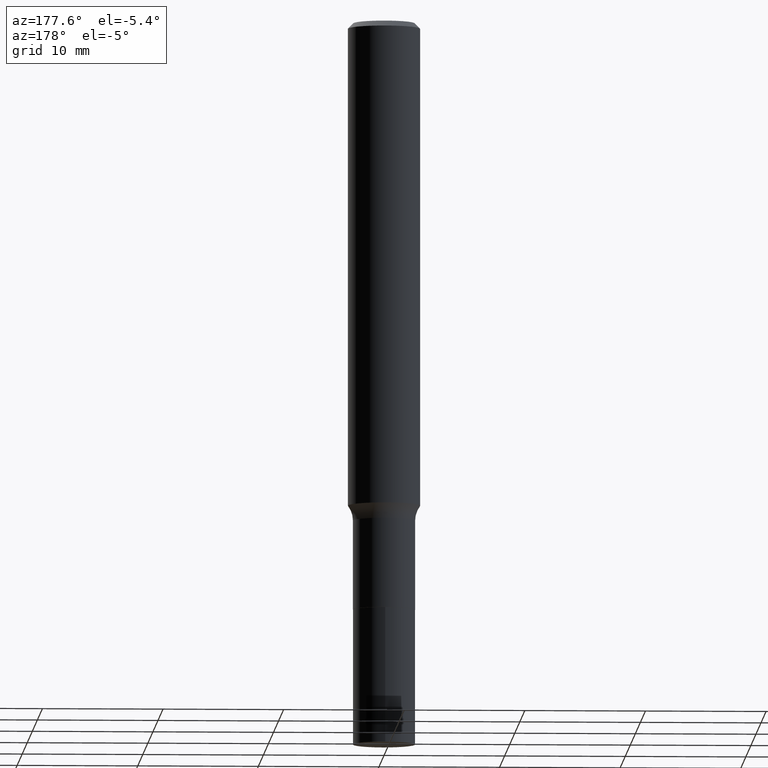
[diagram: clean part render]
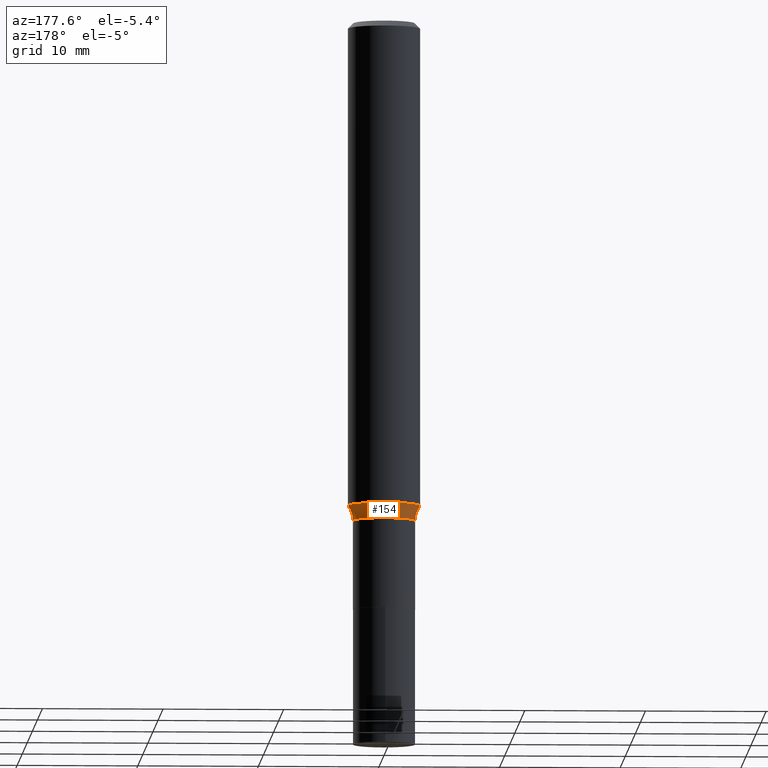
[diagram: same view with one face highlighted and labeled with its STEP entity id]
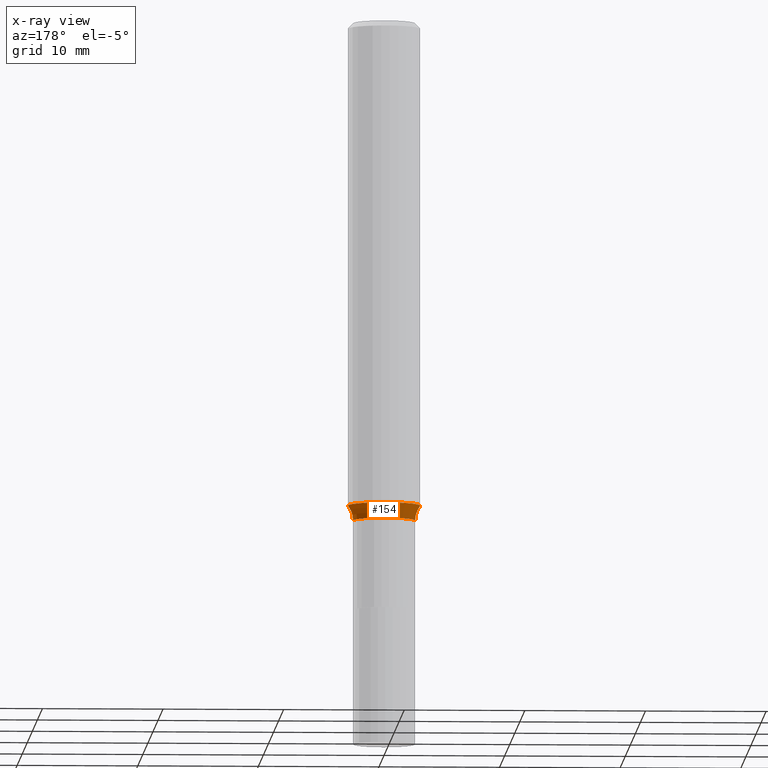
[diagram: x-ray of the same camera — body ghosted, the highlighted face saturated]
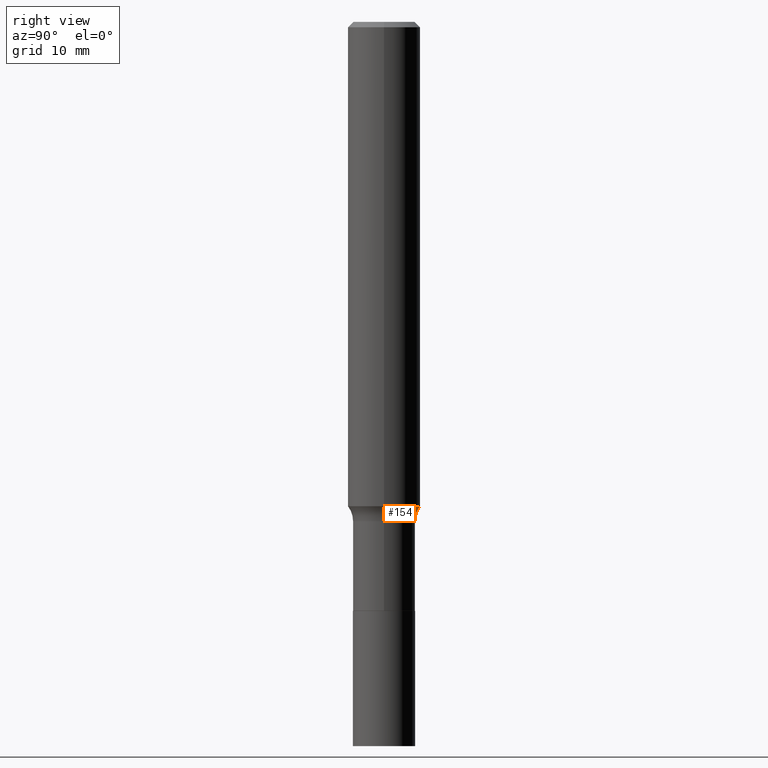
[diagram: same view with one face highlighted and labeled with its STEP entity id]
A machine part, auxiliary view. The second image highlights one B-rep face of the part: STEP entity #154.
The next image is the same camera in x-ray: the body ghosted, the highlighted face saturated — about 0% of this face is hidden behind the body in this view.
A second angle (right view) of the same face is appended — the face is thin or edge-on in the first view.
In plain terms, the highlighted toroidal blend (fillet) surface has major radius 4.6114 mm and minor (blend) radius 2.032 mm.
Its self-contained STEP definition (entity closure, byte-faithful):
#1 = ORIENTED_EDGE ( 'NONE', *, *, #147, .T. ) ;
#2 = CIRCLE ( 'NONE', #223, 0.08000000000000002942 ) ;
#24 = DIRECTION ( 'NONE',  ( -2.445468806185136597E-29, 3.491481338843145583E-15, 1.000000000000000000 ) ) ;
#25 = AXIS2_PLACEMENT_3D ( 'NONE', #188, #82, #83 ) ;
#34 = CIRCLE ( 'NONE', #58, 0.08000000000000002942 ) ;
#38 = EDGE_LOOP ( 'NONE', ( #253, #355, #1, #288 ) ) ;
#58 = AXIS2_PLACEMENT_3D ( 'NONE', #124, #267, #367 ) ;
#60 = CARTESIAN_POINT ( 'NONE',  ( -0.1015499999999999736, -5.474775783880549735E-15, -1.628700000000000259 ) ) ;
#73 = TOROIDAL_SURFACE ( 'NONE', #217, 0.1815499999999999614, 0.08000000000000002942 ) ;
#78 = VERTEX_POINT ( 'NONE', #160 ) ;
#82 = DIRECTION ( 'NONE',  ( -2.445468806185136597E-29, 3.491481338843145583E-15, 1.000000000000000000 ) ) ;
#83 = DIRECTION ( 'NONE',  ( 1.000000000000000000, -6.982962677686266711E-15, 0.000000000000000000 ) ) ;
#91 = EDGE_CURVE ( 'NONE', #78, #324, #231, .T. ) ;
#124 = CARTESIAN_POINT ( 'NONE',  ( -0.1815499999999999614, -4.396585319801370318E-15, -1.628700000000000259 ) ) ;
#147 = EDGE_CURVE ( 'NONE', #257, #78, #2, .T. ) ;
#151 = DIRECTION ( 'NONE',  ( 1.000000000000000000, -6.982962677686269077E-15, 0.000000000000000000 ) ) ;
#154 = ADVANCED_FACE ( 'NONE', ( #298 ), #73, .F. ) ;
#159 = EDGE_CURVE ( 'NONE', #417, #324, #34, .T. ) ;
#160 = CARTESIAN_POINT ( 'NONE',  ( 0.1015499999999999736, -6.395695516492872910E-15, -1.628700000000000259 ) ) ;
#163 = CARTESIAN_POINT ( 'NONE',  ( 3.863780282840086408E-29, -5.516454236016518236E-15, -1.579975288610397932 ) ) ;
#188 = CARTESIAN_POINT ( 'NONE',  ( 3.982935044633732468E-29, -5.686575656573832917E-15, -1.628700000000000259 ) ) ;
#199 = DIRECTION ( 'NONE',  ( 1.000000000000000000, -6.982962677686268288E-15, 0.000000000000000000 ) ) ;
#217 = AXIS2_PLACEMENT_3D ( 'NONE', #444, #442, #225 ) ;
#223 = AXIS2_PLACEMENT_3D ( 'NONE', #372, #333, #151 ) ;
#225 = DIRECTION ( 'NONE',  ( 1.000000000000000000, -6.982962677686269077E-15, 4.883557194083114022E-29 ) ) ;
#231 = CIRCLE ( 'NONE', #25, 0.1015499999999999736 ) ;
#251 = CARTESIAN_POINT ( 'NONE',  ( -0.1181000000000002187, -4.677303265083837672E-15, -1.579975288610397932 ) ) ;
#253 = ORIENTED_EDGE ( 'NONE', *, *, #159, .F. ) ;
#257 = VERTEX_POINT ( 'NONE', #456 ) ;
#267 = DIRECTION ( 'NONE',  ( 7.105427357601001859E-15, 1.000000000000000000, -3.491481338843145583E-15 ) ) ;
#275 = CIRCLE ( 'NONE', #408, 0.1181000000000002048 ) ;
#288 = ORIENTED_EDGE ( 'NONE', *, *, #91, .T. ) ;
#292 = EDGE_CURVE ( 'NONE', #257, #417, #275, .T. ) ;
#298 = FACE_OUTER_BOUND ( 'NONE', #38, .T. ) ;
#324 = VERTEX_POINT ( 'NONE', #60 ) ;
#333 = DIRECTION ( 'NONE',  ( -6.982962677686266711E-15, -1.000000000000000000, 3.491481338843145583E-15 ) ) ;
#355 = ORIENTED_EDGE ( 'NONE', *, *, #292, .F. ) ;
#367 = DIRECTION ( 'NONE',  ( -1.000000000000000000, 7.105427357601001859E-15, 0.000000000000000000 ) ) ;
#372 = CARTESIAN_POINT ( 'NONE',  ( 0.1815499999999999614, -6.954332530707773774E-15, -1.628700000000000259 ) ) ;
#408 = AXIS2_PLACEMENT_3D ( 'NONE', #163, #24, #199 ) ;
#417 = VERTEX_POINT ( 'NONE', #251 ) ;
#442 = DIRECTION ( 'NONE',  ( -2.445468806185136597E-29, 3.491481338843145583E-15, 1.000000000000000000 ) ) ;
#444 = CARTESIAN_POINT ( 'NONE',  ( 3.982935044633732468E-29, -5.686575656573832917E-15, -1.628700000000000259 ) ) ;
#456 = CARTESIAN_POINT ( 'NONE',  ( 0.1181000000000002187, -6.341142128251266498E-15, -1.579975288610397932 ) ) ;